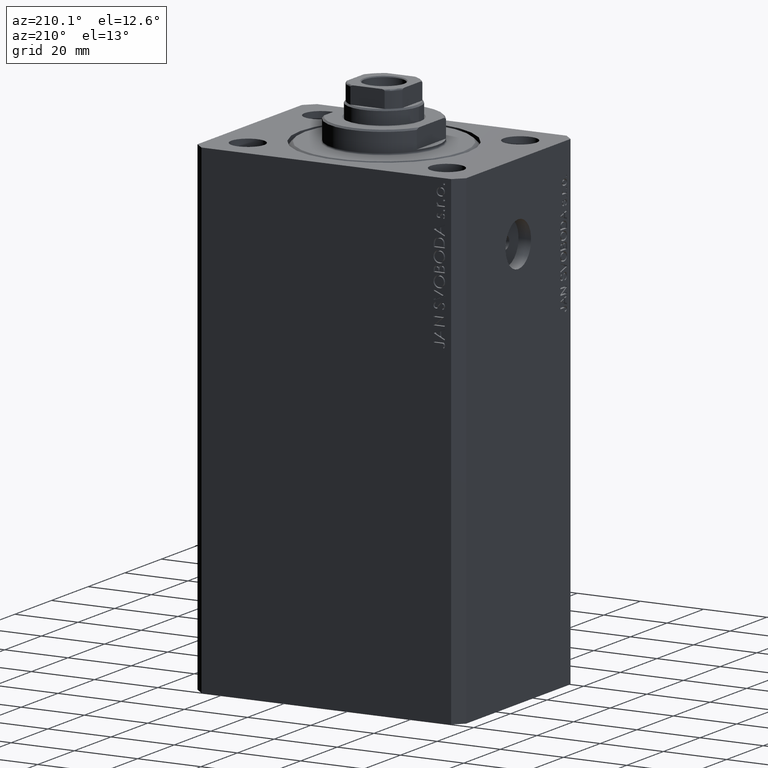
[diagram: clean part render]
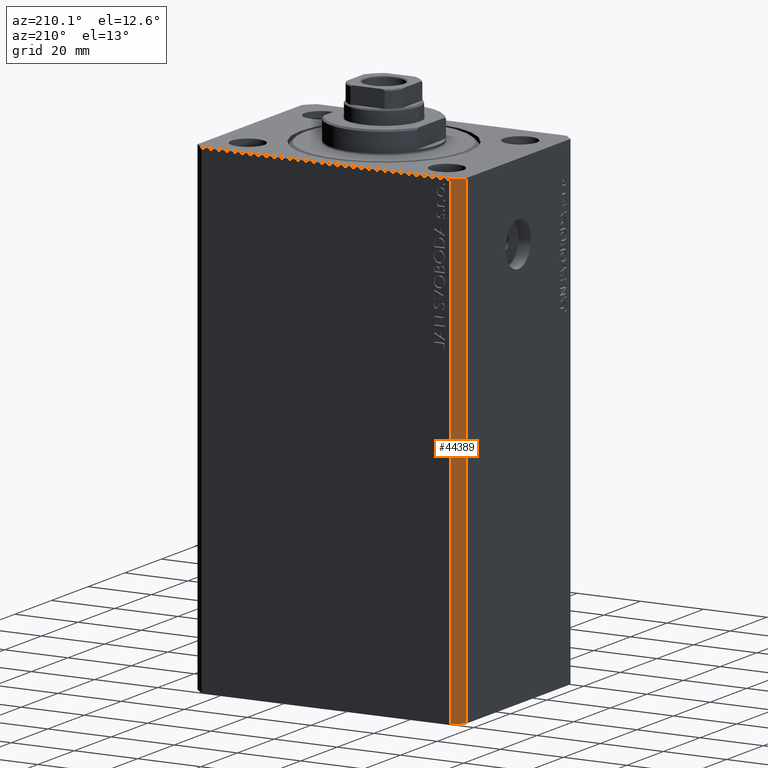
[diagram: same view with one face highlighted and labeled with its STEP entity id]
A machine part, auxiliary view. The second image highlights one B-rep face of the part: STEP entity #44389.
In plain terms, the highlighted planar face has unit normal (-0.7071, 0.7071, 0).
Its self-contained STEP definition (entity closure, byte-faithful):
#419 = VERTEX_POINT ( 'NONE', #12198 ) ;
#1586 = CARTESIAN_POINT ( 'NONE',  ( -39.50000000000000711, 31.50000000000000000, -153.0000000000000000 ) ) ;
#2177 = VECTOR ( 'NONE', #32768, 1000.000000000000000 ) ;
#2184 = CARTESIAN_POINT ( 'NONE',  ( -42.50000000000000000, 28.50000000000000000, -153.0000000000000000 ) ) ;
#2808 = DIRECTION ( 'NONE',  ( -0.7071067811865471286, -0.7071067811865479058, 0.000000000000000000 ) ) ;
#4028 = EDGE_CURVE ( 'NONE', #18468, #9238, #32483, .T. ) ;
#6230 = DIRECTION ( 'NONE',  ( -0.7071067811865471286, -0.7071067811865479058, 0.000000000000000000 ) ) ;
#9238 = VERTEX_POINT ( 'NONE', #2184 ) ;
#9361 = PLANE ( 'NONE',  #28167 ) ;
#9793 = CARTESIAN_POINT ( 'NONE',  ( -39.50000000000000711, 31.50000000000000000, -153.0000000000000000 ) ) ;
#11988 = VECTOR ( 'NONE', #6230, 1000.000000000000000 ) ;
#12198 = CARTESIAN_POINT ( 'NONE',  ( -39.50000000000000711, 31.50000000000000000, 0.000000000000000000 ) ) ;
#13395 = FACE_OUTER_BOUND ( 'NONE', #41707, .T. ) ;
#14712 = EDGE_CURVE ( 'NONE', #9238, #21362, #35234, .T. ) ;
#14799 = ORIENTED_EDGE ( 'NONE', *, *, #27492, .F. ) ;
#15779 = DIRECTION ( 'NONE',  ( -0.7071067811865471286, -0.7071067811865479058, 0.000000000000000000 ) ) ;
#18352 = CARTESIAN_POINT ( 'NONE',  ( -39.50000000000000711, 31.50000000000000000, -153.0000000000000000 ) ) ;
#18468 = VERTEX_POINT ( 'NONE', #22403 ) ;
#21362 = VERTEX_POINT ( 'NONE', #37703 ) ;
#22403 = CARTESIAN_POINT ( 'NONE',  ( -39.50000000000000711, 31.50000000000000000, -153.0000000000000000 ) ) ;
#23292 = ORIENTED_EDGE ( 'NONE', *, *, #14712, .T. ) ;
#24275 = LINE ( 'NONE', #40730, #11988 ) ;
#25513 = DIRECTION ( 'NONE',  ( 0.000000000000000000, 0.000000000000000000, 1.000000000000000000 ) ) ;
#26419 = VECTOR ( 'NONE', #15779, 1000.000000000000000 ) ;
#27492 = EDGE_CURVE ( 'NONE', #419, #21362, #24275, .T. ) ;
#28167 = AXIS2_PLACEMENT_3D ( 'NONE', #9793, #37097, #2808 ) ;
#32483 = LINE ( 'NONE', #1586, #26419 ) ;
#32768 = DIRECTION ( 'NONE',  ( 0.000000000000000000, 0.000000000000000000, 1.000000000000000000 ) ) ;
#35234 = LINE ( 'NONE', #42203, #41950 ) ;
#37097 = DIRECTION ( 'NONE',  ( -0.7071067811865479058, 0.7071067811865471286, 0.000000000000000000 ) ) ;
#37309 = EDGE_CURVE ( 'NONE', #18468, #419, #43121, .T. ) ;
#37703 = CARTESIAN_POINT ( 'NONE',  ( -42.50000000000000000, 28.50000000000000000, 0.000000000000000000 ) ) ;
#40195 = ORIENTED_EDGE ( 'NONE', *, *, #37309, .F. ) ;
#40730 = CARTESIAN_POINT ( 'NONE',  ( -39.50000000000000711, 31.50000000000000000, 0.000000000000000000 ) ) ;
#41707 = EDGE_LOOP ( 'NONE', ( #14799, #40195, #42282, #23292 ) ) ;
#41950 = VECTOR ( 'NONE', #25513, 1000.000000000000000 ) ;
#42203 = CARTESIAN_POINT ( 'NONE',  ( -42.50000000000000000, 28.50000000000000000, -153.0000000000000000 ) ) ;
#42282 = ORIENTED_EDGE ( 'NONE', *, *, #4028, .T. ) ;
#43121 = LINE ( 'NONE', #18352, #2177 ) ;
#44389 = ADVANCED_FACE ( 'NONE', ( #13395 ), #9361, .T. ) ;